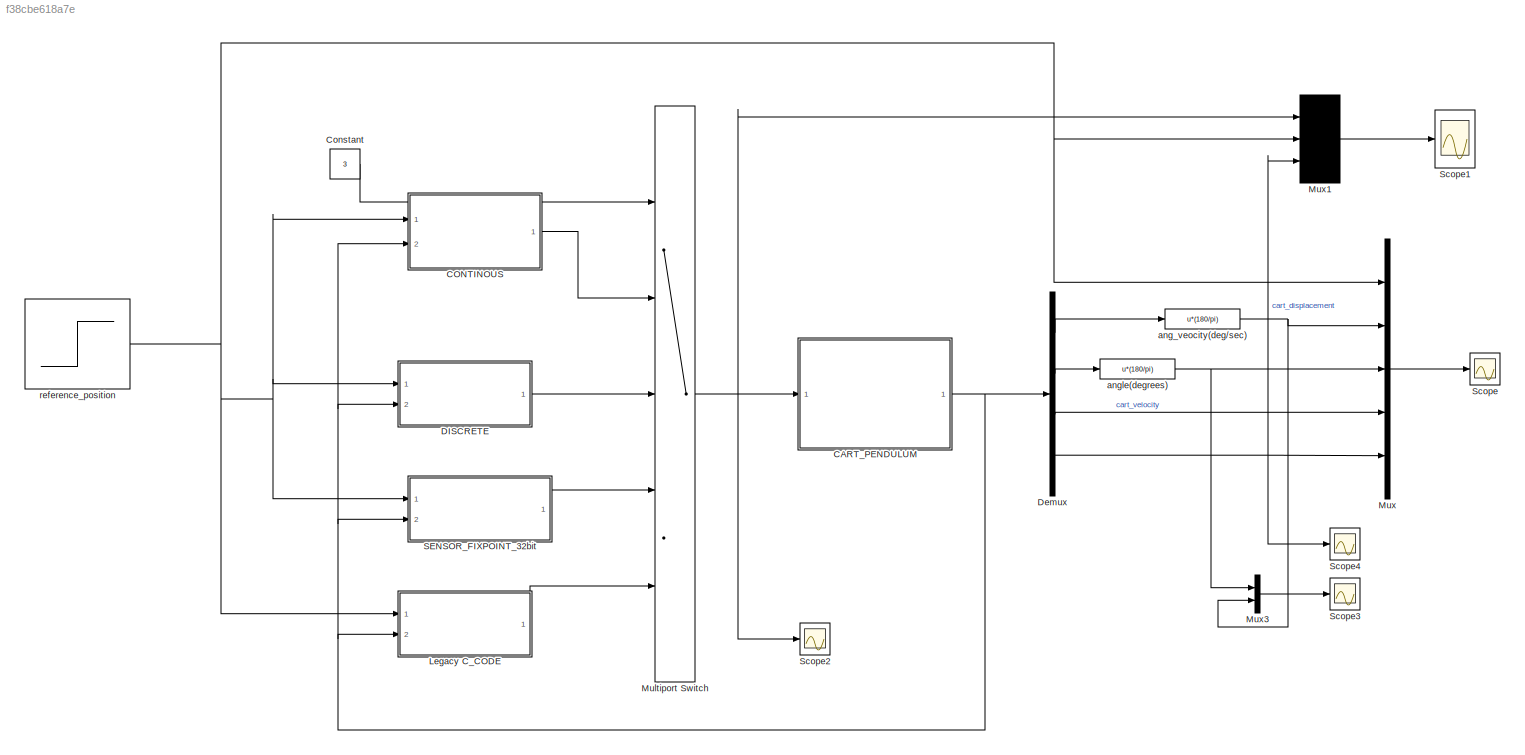
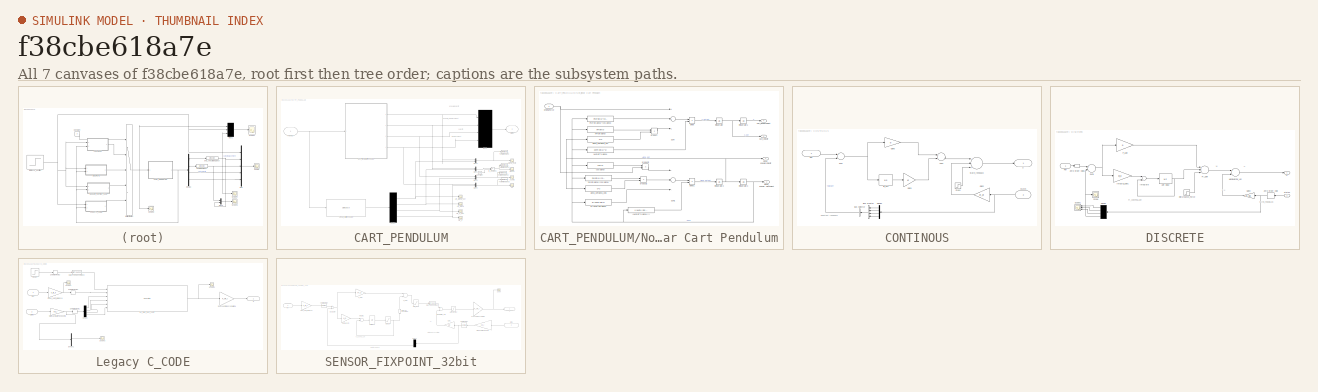
[diagram: thumbnail index - all 7 canvases of the model, root first then tree order]
MODEL slx_f38cbe618a7e
KIND model
CONFIG AbsTol = auto
CONFIG EnableMultiTasking = off
CONFIG FixedStep = auto
CONFIG MaxStep = auto
CONFIG MinStep = auto
CONFIG RelTol = 1e-3
CONFIG SampleTimeConstraint = Unconstrained
CONFIG Solver = ode45
CONFIG SolverName = ode45
CONFIG StartTime = 0.0
CONFIG StopTime = 50
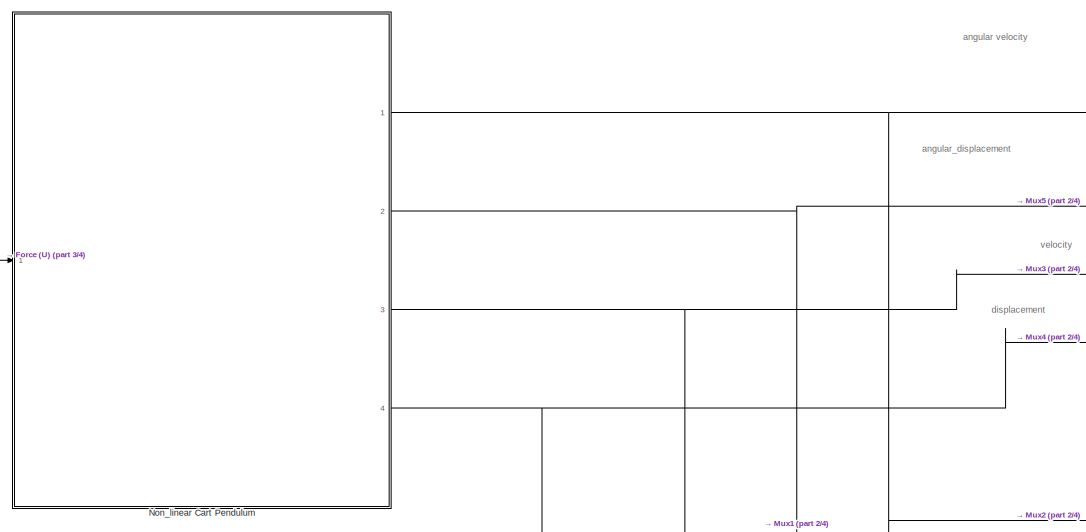
[diagram: CART_PENDULUM - part 1/4, top center region]
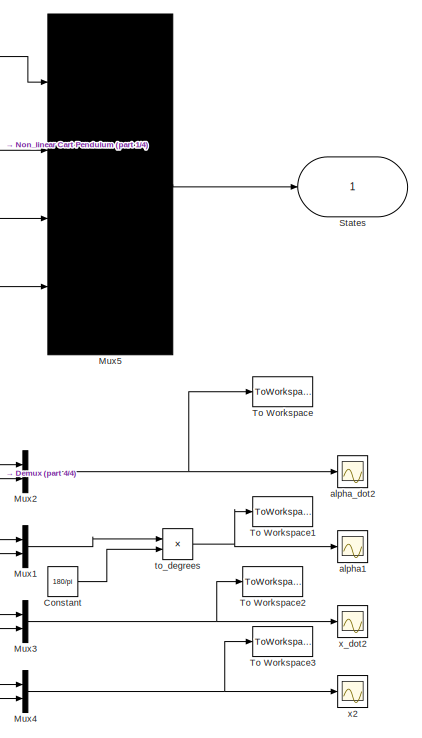
[diagram: CART_PENDULUM - part 2/4, middle right region]
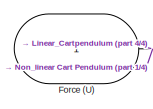
[diagram: CART_PENDULUM - part 3/4, top left region]
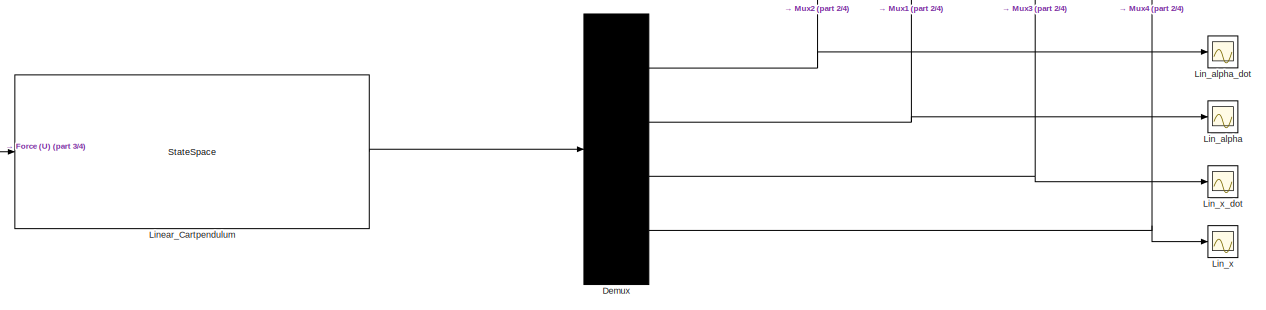
[diagram: CART_PENDULUM - part 4/4, bottom center region]
BLOCK [SubSystem] CART_PENDULUM
  Ports = [1, 1]
  RequestExecContextInheritance = off
BLOCK [Constant] CART_PENDULUM/Constant
  Value = 180/pi
BLOCK [Demux] CART_PENDULUM/Demux
  Ports = [1, 4]
BLOCK [Inport] CART_PENDULUM/Force (U)
  IconDisplay = Port number
BLOCK [Scope] CART_PENDULUM/Lin_alpha
  Floating = off
  NumInputPorts = 1
  Ports = [1]
  ShowLegends = off
BLOCK [Scope] CART_PENDULUM/Lin_alpha_dot
  Floating = off
  NumInputPorts = 1
  Ports = [1]
  ShowLegends = off
BLOCK [Scope] CART_PENDULUM/Lin_x
  Floating = off
  NumInputPorts = 1
  Ports = [1]
  ShowLegends = off
BLOCK [Scope] CART_PENDULUM/Lin_x_dot
  Floating = off
  NumInputPorts = 1
  Ports = [1]
  ShowLegends = off
BLOCK [StateSpace] CART_PENDULUM/Linear_Cartpendulum
  A = A
  B = B
  C = C
  D = D
  Ports = [1, 1]
BLOCK [Mux] CART_PENDULUM/Mux1
  DisplayOption = bar
  Inputs = 2
  Ports = [2, 1]
BLOCK [Mux] CART_PENDULUM/Mux2
  DisplayOption = bar
  Inputs = 2
  Ports = [2, 1]
BLOCK [Mux] CART_PENDULUM/Mux3
  DisplayOption = bar
  Inputs = 2
  Ports = [2, 1]
BLOCK [Mux] CART_PENDULUM/Mux4
  DisplayOption = bar
  Inputs = 2
  Ports = [2, 1]
BLOCK [Mux] CART_PENDULUM/Mux5
  DisplayOption = signals
  Ports = [4, 1]
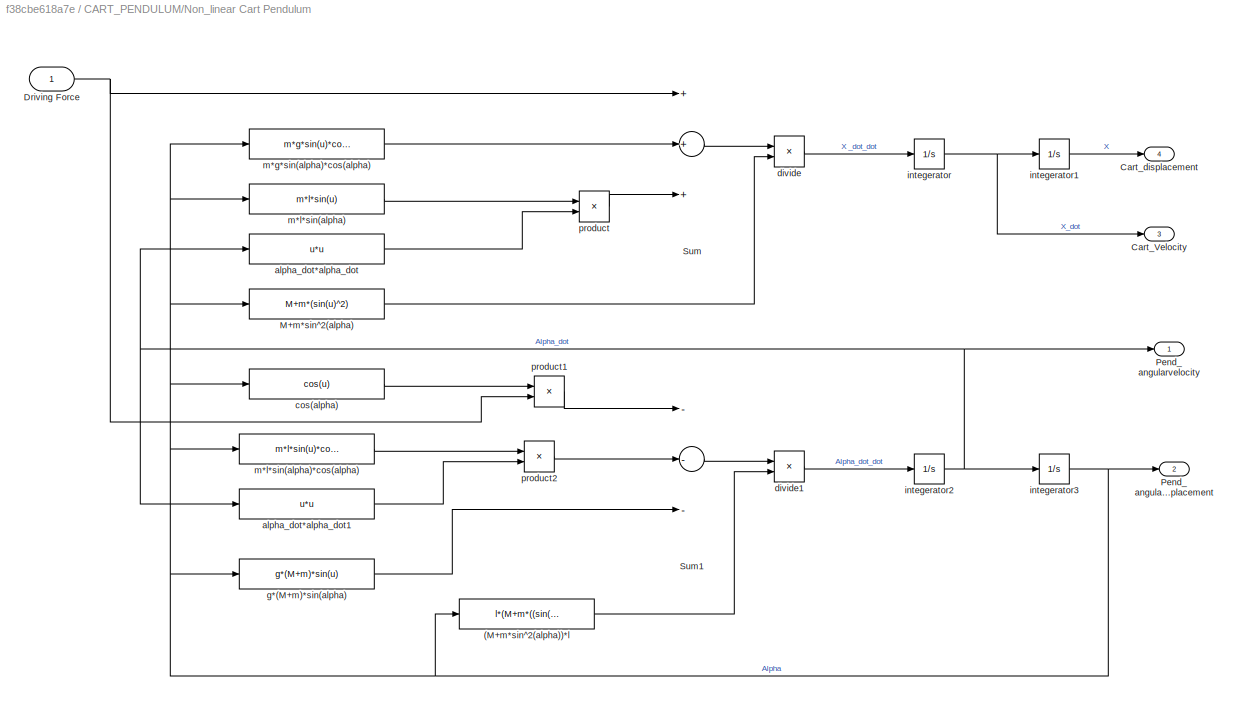
BLOCK [SubSystem] CART_PENDULUM/Non_linear Cart Pendulum
  Ports = [1, 4]
  RequestExecContextInheritance = off
BLOCK [Outport] CART_PENDULUM/Non_linear Cart Pendulum/                   Pend_angulardisplacement
  IconDisplay = Port number
  Port = 2
BLOCK [Outport] CART_PENDULUM/Non_linear Cart Pendulum/                   Pend_angularvelocity
  IconDisplay = Port number
BLOCK [Fcn] CART_PENDULUM/Non_linear Cart Pendulum/(M+m*sin^2(alpha))*l
  Expr = l*(M+m*((sin(u))^2))
BLOCK [Outport] CART_PENDULUM/Non_linear Cart Pendulum/Cart_Velocity
  IconDisplay = Port number
  Port = 3
BLOCK [Outport] CART_PENDULUM/Non_linear Cart Pendulum/Cart_displacement
  IconDisplay = Port number
  Port = 4
BLOCK [Inport] CART_PENDULUM/Non_linear Cart Pendulum/Driving Force
  IconDisplay = Port number
BLOCK [Fcn] CART_PENDULUM/Non_linear Cart Pendulum/M+m*sin^2(alpha)
  Expr = M+m*(sin(u)^2)
BLOCK [Sum] CART_PENDULUM/Non_linear Cart Pendulum/Sum
  InputSameDT = off
  Inputs = +++
  OutDataTypeStr = Inherit: Inherit via internal rule
  Ports = [3, 1]
  SaturateOnIntegerOverflow = off
BLOCK [Sum] CART_PENDULUM/Non_linear Cart Pendulum/Sum1
  InputSameDT = off
  Inputs = ---
  OutDataTypeStr = Inherit: Inherit via internal rule
  Ports = [3, 1]
  SaturateOnIntegerOverflow = off
BLOCK [Fcn] CART_PENDULUM/Non_linear Cart Pendulum/alpha_dot*alpha_dot
  Expr = u*u
BLOCK [Fcn] CART_PENDULUM/Non_linear Cart Pendulum/alpha_dot*alpha_dot1
  Expr = u*u
BLOCK [Fcn] CART_PENDULUM/Non_linear Cart Pendulum/cos(alpha)
  Expr = cos(u)
BLOCK [Product] CART_PENDULUM/Non_linear Cart Pendulum/divide
  InputSameDT = off
  Inputs = */
  OutDataTypeStr = Inherit: Inherit via internal rule
  Ports = [2, 1]
  RndMeth = Floor
  SaturateOnIntegerOverflow = off
BLOCK [Product] CART_PENDULUM/Non_linear Cart Pendulum/divide1
  InputSameDT = off
  Inputs = */
  OutDataTypeStr = double
  Ports = [2, 1]
  RndMeth = Floor
  SaturateOnIntegerOverflow = off
BLOCK [Fcn] CART_PENDULUM/Non_linear Cart Pendulum/g*(M+m)*sin(alpha)
  Expr = g*(M+m)*sin(u)
BLOCK [Integrator] CART_PENDULUM/Non_linear Cart Pendulum/integerator
  Ports = [1, 1]
BLOCK [Integrator] CART_PENDULUM/Non_linear Cart Pendulum/integerator1
  Ports = [1, 1]
BLOCK [Integrator] CART_PENDULUM/Non_linear Cart Pendulum/integerator2
  Ports = [1, 1]
BLOCK [Integrator] CART_PENDULUM/Non_linear Cart Pendulum/integerator3
  Ports = [1, 1]
BLOCK [Fcn] CART_PENDULUM/Non_linear Cart Pendulum/m*g*sin(alpha)*cos(alpha)
  Expr = m*g*sin(u)*cos(u)
BLOCK [Fcn] CART_PENDULUM/Non_linear Cart Pendulum/m*l*sin(alpha)
  Expr = m*l*sin(u)
BLOCK [Fcn] CART_PENDULUM/Non_linear Cart Pendulum/m*l*sin(alpha)*cos(alpha)
  Expr = m*l*sin(u)*cos(u)
BLOCK [Product] CART_PENDULUM/Non_linear Cart Pendulum/product
  InputSameDT = off
  OutDataTypeStr = Inherit: Inherit via internal rule
  Ports = [2, 1]
  RndMeth = Floor
  SaturateOnIntegerOverflow = off
BLOCK [Product] CART_PENDULUM/Non_linear Cart Pendulum/product1
  InputSameDT = off
  OutDataTypeStr = double
  Ports = [2, 1]
  RndMeth = Floor
  SaturateOnIntegerOverflow = off
BLOCK [Product] CART_PENDULUM/Non_linear Cart Pendulum/product2
  InputSameDT = off
  OutDataTypeStr = Inherit: Inherit via internal rule
  Ports = [2, 1]
  RndMeth = Floor
  SaturateOnIntegerOverflow = off
BLOCK [Outport] CART_PENDULUM/States
  IconDisplay = Port number
BLOCK [ToWorkspace] CART_PENDULUM/To Workspace
  FixptAsFi = on
  MaxDataPoints = inf
  Ports = [1]
  SampleTime = -1
  Save2DSignal = 3-D array (concatenate along third dimension)
  SaveFormat = Timeseries
  VariableName = angularvelocity
BLOCK [ToWorkspace] CART_PENDULUM/To Workspace1
  FixptAsFi = on
  MaxDataPoints = inf
  Ports = [1]
  SampleTime = -1
  Save2DSignal = 3-D array (concatenate along third dimension)
  SaveFormat = Timeseries
  VariableName = angle
BLOCK [ToWorkspace] CART_PENDULUM/To Workspace2
  FixptAsFi = on
  MaxDataPoints = inf
  Ports = [1]
  SampleTime = -1
  Save2DSignal = 3-D array (concatenate along third dimension)
  SaveFormat = Timeseries
  VariableName = angle1
BLOCK [ToWorkspace] CART_PENDULUM/To Workspace3
  FixptAsFi = on
  MaxDataPoints = inf
  Ports = [1]
  SampleTime = -1
  Save2DSignal = 3-D array (concatenate along third dimension)
  SaveFormat = Timeseries
  VariableName = angle2
BLOCK [Scope] CART_PENDULUM/alpha1
  Floating = off
  NumInputPorts = 1
  Ports = [1]
  ShowLegends = off
BLOCK [Scope] CART_PENDULUM/alpha_dot2
  Floating = off
  NumInputPorts = 1
  Ports = [1]
  ShowLegends = off
BLOCK [Product] CART_PENDULUM/to_degrees
  InputSameDT = off
  Inputs = **
  OutDataTypeStr = Inherit: Inherit via internal rule
  Ports = [2, 1]
  RndMeth = Floor
  SaturateOnIntegerOverflow = off
BLOCK [Scope] CART_PENDULUM/x2
  Floating = off
  NumInputPorts = 1
  Ports = [1]
  ShowLegends = off
BLOCK [Scope] CART_PENDULUM/x_dot2
  Floating = off
  NumInputPorts = 1
  Ports = [1]
  ShowLegends = off
BLOCK [SubSystem] CONTINOUS
  Ports = [2, 1]
  RequestExecContextInheritance = off
BLOCK [Sum] CONTINOUS/Add4
  InputSameDT = off
  OutDataTypeStr = Inherit: Inherit via internal rule
  Ports = [2, 1]
  SaturateOnIntegerOverflow = off
BLOCK [BusCreator] CONTINOUS/Bus Creator
  DisplayOption = bar
  Ports = [4, 1]
BLOCK [BusSelector] CONTINOUS/Bus Selector
  OutputSignals = signal4
  Ports = [1, 1]
BLOCK [Demux] CONTINOUS/Demux
  DisplayOption = bar
  Ports = [1, 4]
BLOCK [Gain] CONTINOUS/Gain2
  Gain = kt_pi
  Multiplication = Matrix(K*u) (u vector)
  OutDataTypeStr = Inherit: Inherit via internal rule
  ParamDataTypeStr = Inherit: Inherit via internal rule
  SaturateOnIntegerOverflow = off
BLOCK [Gain] CONTINOUS/Gain3
  Gain = ki
  OutDataTypeStr = Inherit: Inherit via internal rule
  ParamDataTypeStr = Inherit: Inherit via internal rule
  SaturateOnIntegerOverflow = off
BLOCK [Gain] CONTINOUS/Gain5
  Gain = p
  OutDataTypeStr = Inherit: Inherit via internal rule
  ParamDataTypeStr = Inherit: Inherit via internal rule
  SaturateOnIntegerOverflow = off
BLOCK [Inport] CONTINOUS/Ref
  IconDisplay = Port number
BLOCK [Sum] CONTINOUS/State_feedback
  InputSameDT = off
  Inputs = +-+
  OutDataTypeStr = Inherit: Inherit via internal rule
  Ports = [3, 1]
  SaturateOnIntegerOverflow = off
BLOCK [Inport] CONTINOUS/States
  IconDisplay = Port number
  Port = 2
BLOCK [Step] CONTINOUS/Step1
  After = 0
  SampleTime = 0
  Time = 10
BLOCK [Sum] CONTINOUS/Sum
  InputSameDT = off
  Inputs = +-
  OutDataTypeStr = Inherit: Inherit via internal rule
  Ports = [2, 1]
  SaturateOnIntegerOverflow = off
BLOCK [Outport] CONTINOUS/U
  IconDisplay = Port number
BLOCK [Integrator] CONTINOUS/lin_acc
  Ports = [1, 1]
BLOCK [Constant] Constant
  Value = 3
BLOCK [SubSystem] DISCRETE
  Ports = [2, 1]
  RequestExecContextInheritance = off
BLOCK [Demux] DISCRETE/Demux
  DisplayOption = bar
  Ports = [1, 4]
BLOCK [Step] DISCRETE/Disturbance_Force
  After = 0
  SampleTime = Ts
  Time = 0
BLOCK [Gain] DISCRETE/Gain2
  Gain = kt_dg
  Multiplication = Matrix(K*u) (u vector)
  OutDataTypeStr = Inherit: Inherit via internal rule
  ParamDataTypeStr = Inherit: Inherit via internal rule
  SaturateOnIntegerOverflow = off
BLOCK [Gain] DISCRETE/Integral_gain1
  Gain = ki_d
  OutDataTypeStr = Inherit: Inherit via internal rule
  ParamDataTypeStr = Inherit: Inherit via internal rule
  SaturateOnIntegerOverflow = off
BLOCK [Sum] DISCRETE/Integrate
  InputSameDT = off
  OutDataTypeStr = Inherit: Inherit via internal rule
  Ports = [2, 1]
  SaturateOnIntegerOverflow = off
BLOCK [Sum] DISCRETE/Manipulating_Var
  InputSameDT = off
  Inputs = +-
  OutDataTypeStr = Inherit: Inherit via internal rule
  Ports = [2, 1]
  SaturateOnIntegerOverflow = off
BLOCK [Sum] DISCRETE/PI_gain
  InputSameDT = off
  Inputs = ++-
  OutDataTypeStr = Inherit: Inherit via internal rule
  Ports = [3, 1]
  SaturateOnIntegerOverflow = off
BLOCK [Gain] DISCRETE/P_gain
  Gain = p
  OutDataTypeStr = Inherit: Inherit via internal rule
  ParamDataTypeStr = Inherit: Inherit via internal rule
  SaturateOnIntegerOverflow = off
BLOCK [Inport] DISCRETE/Ref
  IconDisplay = Port number
BLOCK [Scope] DISCRETE/Scope
  Floating = off
  NumInputPorts = 1
  Ports = [1]
  ShowLegends = off
BLOCK [Scope] DISCRETE/Scope1
  Floating = off
  NumInputPorts = 3
  Ports = [3]
  SaveName = ScopeData1
  ShowLegends = off
  YMax = 5~5~5
  YMin = -5~-5~-5
BLOCK [Inport] DISCRETE/States
  IconDisplay = Port number
  Port = 2
BLOCK [Sum] DISCRETE/Sum1
  InputSameDT = off
  Inputs = +-
  OutDataTypeStr = Inherit: Inherit via internal rule
  Ports = [2, 1]
  SaturateOnIntegerOverflow = off
BLOCK [Outport] DISCRETE/U
  IconDisplay = Port number
BLOCK [UnitDelay] DISCRETE/Unit Delay
  InputProcessing = Elements as channels (sample based)
  SampleTime = Ts
BLOCK [ZeroOrderHold] DISCRETE/Zero-Order Hold
  SampleTime = Ts
BLOCK [ZeroOrderHold] DISCRETE/Zero-Order Hold1
  SampleTime = Ts
BLOCK [Demux] Demux
  DisplayOption = bar
  Ports = [1, 4]
BLOCK [SubSystem] Legacy C_CODE
  Ports = [2, 1]
  RequestExecContextInheritance = off
BLOCK [Gain] Legacy C_CODE/ DAC counts to physical force
  Gain = F_0/F_i
  OutDataTypeStr = double
  ParamDataTypeStr = double
  SaturateOnIntegerOverflow = off
BLOCK [DataTypeConversion] Legacy C_CODE/Data Type Conversion2
  OutDataTypeStr = int8
  RndMeth = Floor
  SaturateOnIntegerOverflow = off
BLOCK [Demux] Legacy C_CODE/Demux
  DisplayOption = bar
  Ports = [1, 4]
BLOCK [Demux] Legacy C_CODE/Demux1
  DisplayOption = bar
  Ports = [1, 4]
BLOCK [Gain] Legacy C_CODE/Fixed_point_reference
  Gain = x_i/x_0
  OutDataTypeStr = int16
  ParamDataTypeStr = Inherit: Inherit via internal rule
  SaturateOnIntegerOverflow = off
BLOCK [Step] Legacy C_CODE/RESET
  After = 0
  Before = 1
  SampleTime = Ts
  Time = 3*Ts
BLOCK [Inport] Legacy C_CODE/Ref
  IconDisplay = Port number
BLOCK [Scope] Legacy C_CODE/Scope1
  Floating = off
  NumInputPorts = 1
  Ports = [1]
  ShowLegends = off
BLOCK [Scope] Legacy C_CODE/Scope2
  Floating = off
  NumInputPorts = 1
  Ports = [1]
  ShowLegends = off
BLOCK [Scope] Legacy C_CODE/Scope3
  Floating = off
  NumInputPorts = 1
  Ports = [1]
  ShowLegends = off
BLOCK [Inport] Legacy C_CODE/States
  IconDisplay = Port number
  Port = 2
BLOCK [Gain] Legacy C_CODE/States: actual to Fixed point1
  Gain = kd_i
  Multiplication = Matrix(K*u) (u vector)
  OutDataTypeStr = int16
  ParamDataTypeStr = Inherit: Inherit via internal rule
  SaturateOnIntegerOverflow = off
BLOCK [Outport] Legacy C_CODE/U
  IconDisplay = Port number
BLOCK [ZeroOrderHold] Legacy C_CODE/Zero-Order Hold1
  SampleTime = Ts
BLOCK [ZeroOrderHold] Legacy C_CODE/Zero-Order Hold2
  SampleTime = Ts
BLOCK [ZeroOrderHold] Legacy C_CODE/Zero-Order Hold3
  SampleTime = Ts
BLOCK [S-Function] Legacy C_CODE/ex_sfun_pos_contr
  EnableBusSupport = off
  FunctionName = ex_sfun_pos_contr
  Ports = [6, 1]
BLOCK [MultiPortSwitch] Multiport Switch
  InputSameDT = off
  Inputs = 4
  Ports = [5, 1]
  SaturateOnIntegerOverflow = off
BLOCK [Mux] Mux
  DisplayOption = bar
  Inputs = 5
  Ports = [5, 1]
BLOCK [Mux] Mux1
  Inputs = 3
  Ports = [3, 1]
BLOCK [Mux] Mux3
  DisplayOption = bar
  Inputs = 2
  Ports = [2, 1]
BLOCK [SubSystem] SENSOR_FIXPOINT_32bit
  Ports = [2, 1]
  RequestExecContextInheritance = off
BLOCK [Gain] SENSOR_FIXPOINT_32bit/ DAC counts to physical force
  Gain = F_0/F_i
  OutDataTypeStr = double
  ParamDataTypeStr = double
  SaturateOnIntegerOverflow = off
BLOCK [DataTypeConversion] SENSOR_FIXPOINT_32bit/Data Type Conversion6
  OutDataTypeStr = fixdt(1,32,KP_SHIFT)
  RndMeth = Floor
  SaturateOnIntegerOverflow = off
BLOCK [DataTypeConversion] SENSOR_FIXPOINT_32bit/Data Type Conversion7
  OutDataTypeStr = fixdt(1,32,KD_SHIFT)
  RndMeth = Floor
  SaturateOnIntegerOverflow = off
BLOCK [Demux] SENSOR_FIXPOINT_32bit/Demux1
  DisplayOption = bar
  Ports = [1, 4]
BLOCK [Gain] SENSOR_FIXPOINT_32bit/Fixed_point_reference1
  Gain = x_i/x_0
  OutDataTypeStr = int16
  ParamDataTypeStr = Inherit: Inherit via internal rule
  SaturateOnIntegerOverflow = off
BLOCK [Gain] SENSOR_FIXPOINT_32bit/Gain1
  Gain = KD
  Multiplication = Matrix(K*u) (u vector)
  OutDataTypeStr = Inherit: Inherit via internal rule
  ParamDataTypeStr = fixdt(1,16,KD_SHIFT)
  SaturateOnIntegerOverflow = off
BLOCK [Gain] SENSOR_FIXPOINT_32bit/Integral_gain1
  Gain = KI_D
  OutDataTypeStr = Inherit: Inherit via internal rule
  ParamDataTypeStr = fixdt(1,16,KI_SHIFT)
  SaturateOnIntegerOverflow = off
BLOCK [Sum] SENSOR_FIXPOINT_32bit/Integrate1
  InputSameDT = off
  OutDataTypeStr = Inherit: Inherit via internal rule
  Ports = [2, 1]
  SaturateOnIntegerOverflow = off
BLOCK [Saturate] SENSOR_FIXPOINT_32bit/LIMIT_INT
  InputPortMap = u0
  LowerLimit = -LIMIT_INT
  Ports = [1, 1]
  UpperLimit = LIMIT_INT
BLOCK [Saturate] SENSOR_FIXPOINT_32bit/LIMIT_KD_OUT
  InputPortMap = u0
  LowerLimit = -1048064
  Ports = [1, 1]
  UpperLimit = 1048064
BLOCK [Saturate] SENSOR_FIXPOINT_32bit/LIMIT_OUT1
  InputPortMap = u0
  LowerLimit = -16384
  Ports = [1, 1]
  UpperLimit = 16384
BLOCK [Sum] SENSOR_FIXPOINT_32bit/Manipulating_Var1
  InputSameDT = off
  Inputs = +-
  OutDataTypeStr = Inherit: Inherit via internal rule
  Ports = [2, 1]
  SaturateOnIntegerOverflow = off
BLOCK [Sum] SENSOR_FIXPOINT_32bit/Ouputt_Error
  InputSameDT = off
  Inputs = +-
  OutDataTypeStr = Inherit: Inherit via internal rule
  Ports = [2, 1]
  SaturateOnIntegerOverflow = off
BLOCK [Sum] SENSOR_FIXPOINT_32bit/PI_gain1
  InputSameDT = off
  OutDataTypeStr = Inherit: Inherit via internal rule
  Ports = [2, 1]
  SaturateOnIntegerOverflow = off
BLOCK [Gain] SENSOR_FIXPOINT_32bit/P_gain1
  Gain = KP_D
  OutDataTypeStr = Inherit: Inherit via internal rule
  ParamDataTypeStr = fixdt(1,16,KP_SHIFT)
  SaturateOnIntegerOverflow = off
BLOCK [Inport] SENSOR_FIXPOINT_32bit/Ref
  IconDisplay = Port number
BLOCK [Scope] SENSOR_FIXPOINT_32bit/Scope
  Floating = off
  NumInputPorts = 1
  Ports = [1]
  ShowLegends = off
BLOCK [Inport] SENSOR_FIXPOINT_32bit/States
  IconDisplay = Port number
  Port = 2
BLOCK [Gain] SENSOR_FIXPOINT_32bit/States: actual to Fixed point
  Gain = kd_i
  Multiplication = Matrix(K*u) (u vector)
  OutDataTypeStr = int16
  ParamDataTypeStr = Inherit: Inherit via internal rule
  SaturateOnIntegerOverflow = off
BLOCK [Outport] SENSOR_FIXPOINT_32bit/U
  IconDisplay = Port number
BLOCK [UnitDelay] SENSOR_FIXPOINT_32bit/Unit Delay1
  InputProcessing = Elements as channels (sample based)
  SampleTime = Ts
BLOCK [ZeroOrderHold] SENSOR_FIXPOINT_32bit/Zero-Order Hold1
  SampleTime = Ts
BLOCK [ZeroOrderHold] SENSOR_FIXPOINT_32bit/Zero-Order Hold3
  SampleTime = Ts
BLOCK [Scope] Scope
  Floating = off
  NumInputPorts = 1
  Ports = [1]
  ShowLegends = off
BLOCK [Scope] Scope1
  Floating = off
  NumInputPorts = 1
  Ports = [1]
  ShowLegends = off
BLOCK [Scope] Scope2
  Floating = off
  NumInputPorts = 1
  Ports = [1]
  ShowLegends = off
BLOCK [Scope] Scope3
  Floating = off
  NumInputPorts = 1
  Ports = [1]
  ShowLegends = off
BLOCK [Scope] Scope4
  Floating = off
  NumInputPorts = 1
  Ports = [1]
  ShowLegends = off
BLOCK [Fcn] ang_veocity(deg//sec)
  Expr = u*(180/pi)
BLOCK [Fcn] angle(degrees)
  Expr = u*(180/pi)
BLOCK [Step] reference_position
  SampleTime = 0
ANNOTATION CART_PENDULUM: angular velocity
ANNOTATION CART_PENDULUM: angular_displacement
ANNOTATION CART_PENDULUM: displacement
ANNOTATION CART_PENDULUM: velocity
ANNOTATION CONTINOUS: Ouputput feedback
ANNOTATION DISCRETE: K.X
ANNOTATION DISCRETE: W
ANNOTATION DISCRETE: U
ANNOTATION DISCRETE: PI_CONTROLLER
ANNOTATION DISCRETE: STATE_FEEDBACK
ANNOTATION SENSOR_FIXPOINT_32bit: Output Feedback
ANNOTATION SENSOR_FIXPOINT_32bit: PI_CONTROLLER
ANNOTATION SENSOR_FIXPOINT_32bit: State feedback controller
ANNOTATION SENSOR_FIXPOINT_32bit: K.X
LINE CART_PENDULUM/Constant:1 -> CART_PENDULUM/to_degrees:2
NET CART_PENDULUM/Demux:1 -> CART_PENDULUM/Lin_alpha_dot:1, CART_PENDULUM/Mux2:2
NET CART_PENDULUM/Demux:2 -> CART_PENDULUM/Lin_alpha:1, CART_PENDULUM/Mux1:2
NET CART_PENDULUM/Demux:3 -> CART_PENDULUM/Lin_x_dot:1, CART_PENDULUM/Mux3:2
NET CART_PENDULUM/Demux:4 -> CART_PENDULUM/Lin_x:1, CART_PENDULUM/Mux4:2
NET CART_PENDULUM/Force (U):1 -> CART_PENDULUM/Linear_Cartpendulum:1, CART_PENDULUM/Non_linear Cart Pendulum:1
LINE CART_PENDULUM/Linear_Cartpendulum:1 -> CART_PENDULUM/Demux:1
LINE CART_PENDULUM/Mux1:1 -> CART_PENDULUM/to_degrees:1
NET CART_PENDULUM/Mux2:1 -> CART_PENDULUM/To Workspace:1, CART_PENDULUM/alpha_dot2:1
NET CART_PENDULUM/Mux3:1 -> CART_PENDULUM/To Workspace2:1, CART_PENDULUM/x_dot2:1
NET CART_PENDULUM/Mux4:1 -> CART_PENDULUM/To Workspace3:1, CART_PENDULUM/x2:1
LINE CART_PENDULUM/Mux5:1 -> CART_PENDULUM/States:1
LINE CART_PENDULUM/Non_linear Cart Pendulum/(M+m*sin^2(alpha))*l:1 -> CART_PENDULUM/Non_linear Cart Pendulum/divide1:2
NET CART_PENDULUM/Non_linear Cart Pendulum/Driving Force:1 -> CART_PENDULUM/Non_linear Cart Pendulum/Sum:1, CART_PENDULUM/Non_linear Cart Pendulum/product1:2
LINE CART_PENDULUM/Non_linear Cart Pendulum/M+m*sin^2(alpha):1 -> CART_PENDULUM/Non_linear Cart Pendulum/divide:2
LINE CART_PENDULUM/Non_linear Cart Pendulum/Sum1:1 -> CART_PENDULUM/Non_linear Cart Pendulum/divide1:1
LINE CART_PENDULUM/Non_linear Cart Pendulum/Sum:1 -> CART_PENDULUM/Non_linear Cart Pendulum/divide:1
LINE CART_PENDULUM/Non_linear Cart Pendulum/alpha_dot*alpha_dot1:1 -> CART_PENDULUM/Non_linear Cart Pendulum/product2:2
LINE CART_PENDULUM/Non_linear Cart Pendulum/alpha_dot*alpha_dot:1 -> CART_PENDULUM/Non_linear Cart Pendulum/product:2
LINE CART_PENDULUM/Non_linear Cart Pendulum/cos(alpha):1 -> CART_PENDULUM/Non_linear Cart Pendulum/product1:1
LINE CART_PENDULUM/Non_linear Cart Pendulum/divide1:1 -> CART_PENDULUM/Non_linear Cart Pendulum/integerator2:1
LINE CART_PENDULUM/Non_linear Cart Pendulum/divide:1 -> CART_PENDULUM/Non_linear Cart Pendulum/integerator:1
LINE CART_PENDULUM/Non_linear Cart Pendulum/g*(M+m)*sin(alpha):1 -> CART_PENDULUM/Non_linear Cart Pendulum/Sum1:3
LINE CART_PENDULUM/Non_linear Cart Pendulum/integerator1:1 -> CART_PENDULUM/Non_linear Cart Pendulum/Cart_displacement:1
NET CART_PENDULUM/Non_linear Cart Pendulum/integerator2:1 -> CART_PENDULUM/Non_linear Cart Pendulum/                   Pend_angularvelocity:1, CART_PENDULUM/Non_linear Cart Pendulum/alpha_dot*alpha_dot1:1, CART_PENDULUM/Non_linear Cart Pendulum/alpha_dot*alpha_dot:1, CART_PENDULUM/Non_linear Cart Pendulum/integerator3:1
NET CART_PENDULUM/Non_linear Cart Pendulum/integerator3:1 -> CART_PENDULUM/Non_linear Cart Pendulum/                   Pend_angulardisplacement:1, CART_PENDULUM/Non_linear Cart Pendulum/(M+m*sin^2(alpha))*l:1, CART_PENDULUM/Non_linear Cart Pendulum/M+m*sin^2(alpha):1, CART_PENDULUM/Non_linear Cart Pendulum/cos(alpha):1, CART_PENDULUM/Non_linear Cart Pendulum/g*(M+m)*sin(alpha):1, CART_PENDULUM/Non_linear Cart Pendulum/m*g*sin(alpha)*cos(alpha):1, CART_PENDULUM/Non_linear Cart Pendulum/m*l*sin(alpha)*cos(alpha):1, CART_PENDULUM/Non_linear Cart Pendulum/m*l*sin(alpha):1
NET CART_PENDULUM/Non_linear Cart Pendulum/integerator:1 -> CART_PENDULUM/Non_linear Cart Pendulum/Cart_Velocity:1, CART_PENDULUM/Non_linear Cart Pendulum/integerator1:1
LINE CART_PENDULUM/Non_linear Cart Pendulum/m*g*sin(alpha)*cos(alpha):1 -> CART_PENDULUM/Non_linear Cart Pendulum/Sum:2
LINE CART_PENDULUM/Non_linear Cart Pendulum/m*l*sin(alpha)*cos(alpha):1 -> CART_PENDULUM/Non_linear Cart Pendulum/product2:1
LINE CART_PENDULUM/Non_linear Cart Pendulum/m*l*sin(alpha):1 -> CART_PENDULUM/Non_linear Cart Pendulum/product:1
LINE CART_PENDULUM/Non_linear Cart Pendulum/product1:1 -> CART_PENDULUM/Non_linear Cart Pendulum/Sum1:1
LINE CART_PENDULUM/Non_linear Cart Pendulum/product2:1 -> CART_PENDULUM/Non_linear Cart Pendulum/Sum1:2
LINE CART_PENDULUM/Non_linear Cart Pendulum/product:1 -> CART_PENDULUM/Non_linear Cart Pendulum/Sum:3
NET CART_PENDULUM/Non_linear Cart Pendulum:1 -> CART_PENDULUM/Mux2:1, CART_PENDULUM/Mux5:1
NET CART_PENDULUM/Non_linear Cart Pendulum:2 -> CART_PENDULUM/Mux1:1, CART_PENDULUM/Mux5:2
NET CART_PENDULUM/Non_linear Cart Pendulum:3 -> CART_PENDULUM/Mux3:1, CART_PENDULUM/Mux5:3
NET CART_PENDULUM/Non_linear Cart Pendulum:4 -> CART_PENDULUM/Mux4:1, CART_PENDULUM/Mux5:4
NET CART_PENDULUM/to_degrees:1 -> CART_PENDULUM/To Workspace1:1, CART_PENDULUM/alpha1:1
NET CART_PENDULUM:1 -> CONTINOUS:2, DISCRETE:2, Demux:1, Legacy C_CODE:2, SENSOR_FIXPOINT_32bit:2
LINE CONTINOUS/Add4:1 -> CONTINOUS/State_feedback:1
LINE CONTINOUS/Bus Creator:1 -> CONTINOUS/Bus Selector:1
LINE CONTINOUS/Bus Selector:1 -> CONTINOUS/Sum:2
LINE CONTINOUS/Demux:1 -> CONTINOUS/Bus Creator:1
LINE CONTINOUS/Demux:2 -> CONTINOUS/Bus Creator:2
LINE CONTINOUS/Demux:3 -> CONTINOUS/Bus Creator:3
LINE CONTINOUS/Demux:4 -> CONTINOUS/Bus Creator:4
LINE CONTINOUS/Gain2:1 -> CONTINOUS/State_feedback:2
LINE CONTINOUS/Gain3:1 -> CONTINOUS/Add4:2
LINE CONTINOUS/Gain5:1 -> CONTINOUS/Add4:1
LINE CONTINOUS/Ref:1 -> CONTINOUS/Sum:1
LINE CONTINOUS/State_feedback:1 -> CONTINOUS/U:1
NET CONTINOUS/States:1 -> CONTINOUS/Demux:1, CONTINOUS/Gain2:1
LINE CONTINOUS/Step1:1 -> CONTINOUS/State_feedback:3
NET CONTINOUS/Sum:1 -> CONTINOUS/Gain5:1, CONTINOUS/lin_acc:1
LINE CONTINOUS/lin_acc:1 -> CONTINOUS/Gain3:1
LINE CONTINOUS:1 -> Multiport Switch:2
LINE Constant:1 -> Multiport Switch:1
LINE DISCRETE/Demux:1 -> DISCRETE/Scope1:1
LINE DISCRETE/Demux:2 -> DISCRETE/Scope1:2
LINE DISCRETE/Demux:3 -> DISCRETE/Scope1:3
NET DISCRETE/Demux:4 -> DISCRETE/Scope:1, DISCRETE/Sum1:2
LINE DISCRETE/Disturbance_Force:1 -> DISCRETE/PI_gain:3
LINE DISCRETE/Gain2:1 -> DISCRETE/Manipulating_Var:2
LINE DISCRETE/Integral_gain1:1 -> DISCRETE/Integrate:1
LINE DISCRETE/Integrate:1 -> DISCRETE/Unit Delay:1
LINE DISCRETE/Manipulating_Var:1 -> DISCRETE/U:1
LINE DISCRETE/PI_gain:1 -> DISCRETE/Manipulating_Var:1
LINE DISCRETE/P_gain:1 -> DISCRETE/PI_gain:1
LINE DISCRETE/Ref:1 -> DISCRETE/Zero-Order Hold1:1
LINE DISCRETE/States:1 -> DISCRETE/Zero-Order Hold:1
NET DISCRETE/Sum1:1 -> DISCRETE/Integral_gain1:1, DISCRETE/P_gain:1
NET DISCRETE/Unit Delay:1 -> DISCRETE/Integrate:2, DISCRETE/PI_gain:2
LINE DISCRETE/Zero-Order Hold1:1 -> DISCRETE/Sum1:1
NET DISCRETE/Zero-Order Hold:1 -> DISCRETE/Demux:1, DISCRETE/Gain2:1
LINE DISCRETE:1 -> Multiport Switch:3
LINE Demux:1 -> ang_veocity(deg//sec):1
LINE Demux:2 -> angle(degrees):1
LINE Demux:3 -> Mux:4
NET Demux:4 -> Mux1:3, Mux:5, Scope4:1
LINE Legacy C_CODE/ DAC counts to physical force:1 -> Legacy C_CODE/U:1
LINE Legacy C_CODE/Data Type Conversion2:1 -> Legacy C_CODE/ex_sfun_pos_contr:1
LINE Legacy C_CODE/Demux1:2 -> Legacy C_CODE/Scope3:1
LINE Legacy C_CODE/Demux:1 -> Legacy C_CODE/ex_sfun_pos_contr:3
LINE Legacy C_CODE/Demux:2 -> Legacy C_CODE/ex_sfun_pos_contr:4
LINE Legacy C_CODE/Demux:3 -> Legacy C_CODE/ex_sfun_pos_contr:5
LINE Legacy C_CODE/Demux:4 -> Legacy C_CODE/ex_sfun_pos_contr:6
NET Legacy C_CODE/Fixed_point_reference:1 -> Legacy C_CODE/Scope1:1, Legacy C_CODE/Zero-Order Hold3:1
LINE Legacy C_CODE/RESET:1 -> Legacy C_CODE/Zero-Order Hold2:1
LINE Legacy C_CODE/Ref:1 -> Legacy C_CODE/Fixed_point_reference:1
NET Legacy C_CODE/States: actual to Fixed point1:1 -> Legacy C_CODE/Demux1:1, Legacy C_CODE/Zero-Order Hold1:1
LINE Legacy C_CODE/States:1 -> Legacy C_CODE/States: actual to Fixed point1:1
LINE Legacy C_CODE/Zero-Order Hold1:1 -> Legacy C_CODE/Demux:1
LINE Legacy C_CODE/Zero-Order Hold2:1 -> Legacy C_CODE/Data Type Conversion2:1
LINE Legacy C_CODE/Zero-Order Hold3:1 -> Legacy C_CODE/ex_sfun_pos_contr:2
NET Legacy C_CODE/ex_sfun_pos_contr:1 -> Legacy C_CODE/ DAC counts to physical force:1, Legacy C_CODE/Scope2:1
LINE Legacy C_CODE:1 -> Multiport Switch:5
NET Multiport Switch:1 -> CART_PENDULUM:1, Mux1:1, Scope2:1
LINE Mux1:1 -> Scope1:1
LINE Mux3:1 -> Scope3:1
LINE Mux:1 -> Scope:1
NET SENSOR_FIXPOINT_32bit/ DAC counts to physical force:1 -> SENSOR_FIXPOINT_32bit/Scope:1, SENSOR_FIXPOINT_32bit/U:1
LINE SENSOR_FIXPOINT_32bit/Data Type Conversion6:1 -> SENSOR_FIXPOINT_32bit/PI_gain1:2
LINE SENSOR_FIXPOINT_32bit/Data Type Conversion7:1 -> SENSOR_FIXPOINT_32bit/Manipulating_Var1:1
LINE SENSOR_FIXPOINT_32bit/Demux1:4 -> SENSOR_FIXPOINT_32bit/Ouputt_Error:2
LINE SENSOR_FIXPOINT_32bit/Fixed_point_reference1:1 -> SENSOR_FIXPOINT_32bit/Zero-Order Hold3:1
LINE SENSOR_FIXPOINT_32bit/Gain1:1 -> SENSOR_FIXPOINT_32bit/Manipulating_Var1:2
LINE SENSOR_FIXPOINT_32bit/Integral_gain1:1 -> SENSOR_FIXPOINT_32bit/Integrate1:1
LINE SENSOR_FIXPOINT_32bit/Integrate1:1 -> SENSOR_FIXPOINT_32bit/Unit Delay1:1
NET SENSOR_FIXPOINT_32bit/LIMIT_INT:1 -> SENSOR_FIXPOINT_32bit/Data Type Conversion6:1, SENSOR_FIXPOINT_32bit/Integrate1:2
LINE SENSOR_FIXPOINT_32bit/LIMIT_KD_OUT:1 -> SENSOR_FIXPOINT_32bit/ DAC counts to physical force:1
LINE SENSOR_FIXPOINT_32bit/LIMIT_OUT1:1 -> SENSOR_FIXPOINT_32bit/Data Type Conversion7:1
LINE SENSOR_FIXPOINT_32bit/Manipulating_Var1:1 -> SENSOR_FIXPOINT_32bit/LIMIT_KD_OUT:1
NET SENSOR_FIXPOINT_32bit/Ouputt_Error:1 -> SENSOR_FIXPOINT_32bit/Integral_gain1:1, SENSOR_FIXPOINT_32bit/P_gain1:1
LINE SENSOR_FIXPOINT_32bit/PI_gain1:1 -> SENSOR_FIXPOINT_32bit/LIMIT_OUT1:1
LINE SENSOR_FIXPOINT_32bit/P_gain1:1 -> SENSOR_FIXPOINT_32bit/PI_gain1:1
LINE SENSOR_FIXPOINT_32bit/Ref:1 -> SENSOR_FIXPOINT_32bit/Fixed_point_reference1:1
LINE SENSOR_FIXPOINT_32bit/States: actual to Fixed point:1 -> SENSOR_FIXPOINT_32bit/Zero-Order Hold1:1
LINE SENSOR_FIXPOINT_32bit/States:1 -> SENSOR_FIXPOINT_32bit/States: actual to Fixed point:1
LINE SENSOR_FIXPOINT_32bit/Unit Delay1:1 -> SENSOR_FIXPOINT_32bit/LIMIT_INT:1
NET SENSOR_FIXPOINT_32bit/Zero-Order Hold1:1 -> SENSOR_FIXPOINT_32bit/Demux1:1, SENSOR_FIXPOINT_32bit/Gain1:1
LINE SENSOR_FIXPOINT_32bit/Zero-Order Hold3:1 -> SENSOR_FIXPOINT_32bit/Ouputt_Error:1
LINE SENSOR_FIXPOINT_32bit:1 -> Multiport Switch:4
NET ang_veocity(deg//sec):1 -> Mux3:2, Mux:2
NET angle(degrees):1 -> Mux3:1, Mux:3
NET reference_position:1 -> CONTINOUS:1, DISCRETE:1, Legacy C_CODE:1, Mux1:2, Mux:1, SENSOR_FIXPOINT_32bit:1
note: NET lines group one-source signal fan-out (src -> all destinations, sorted); 1:1 wires keep LINE
